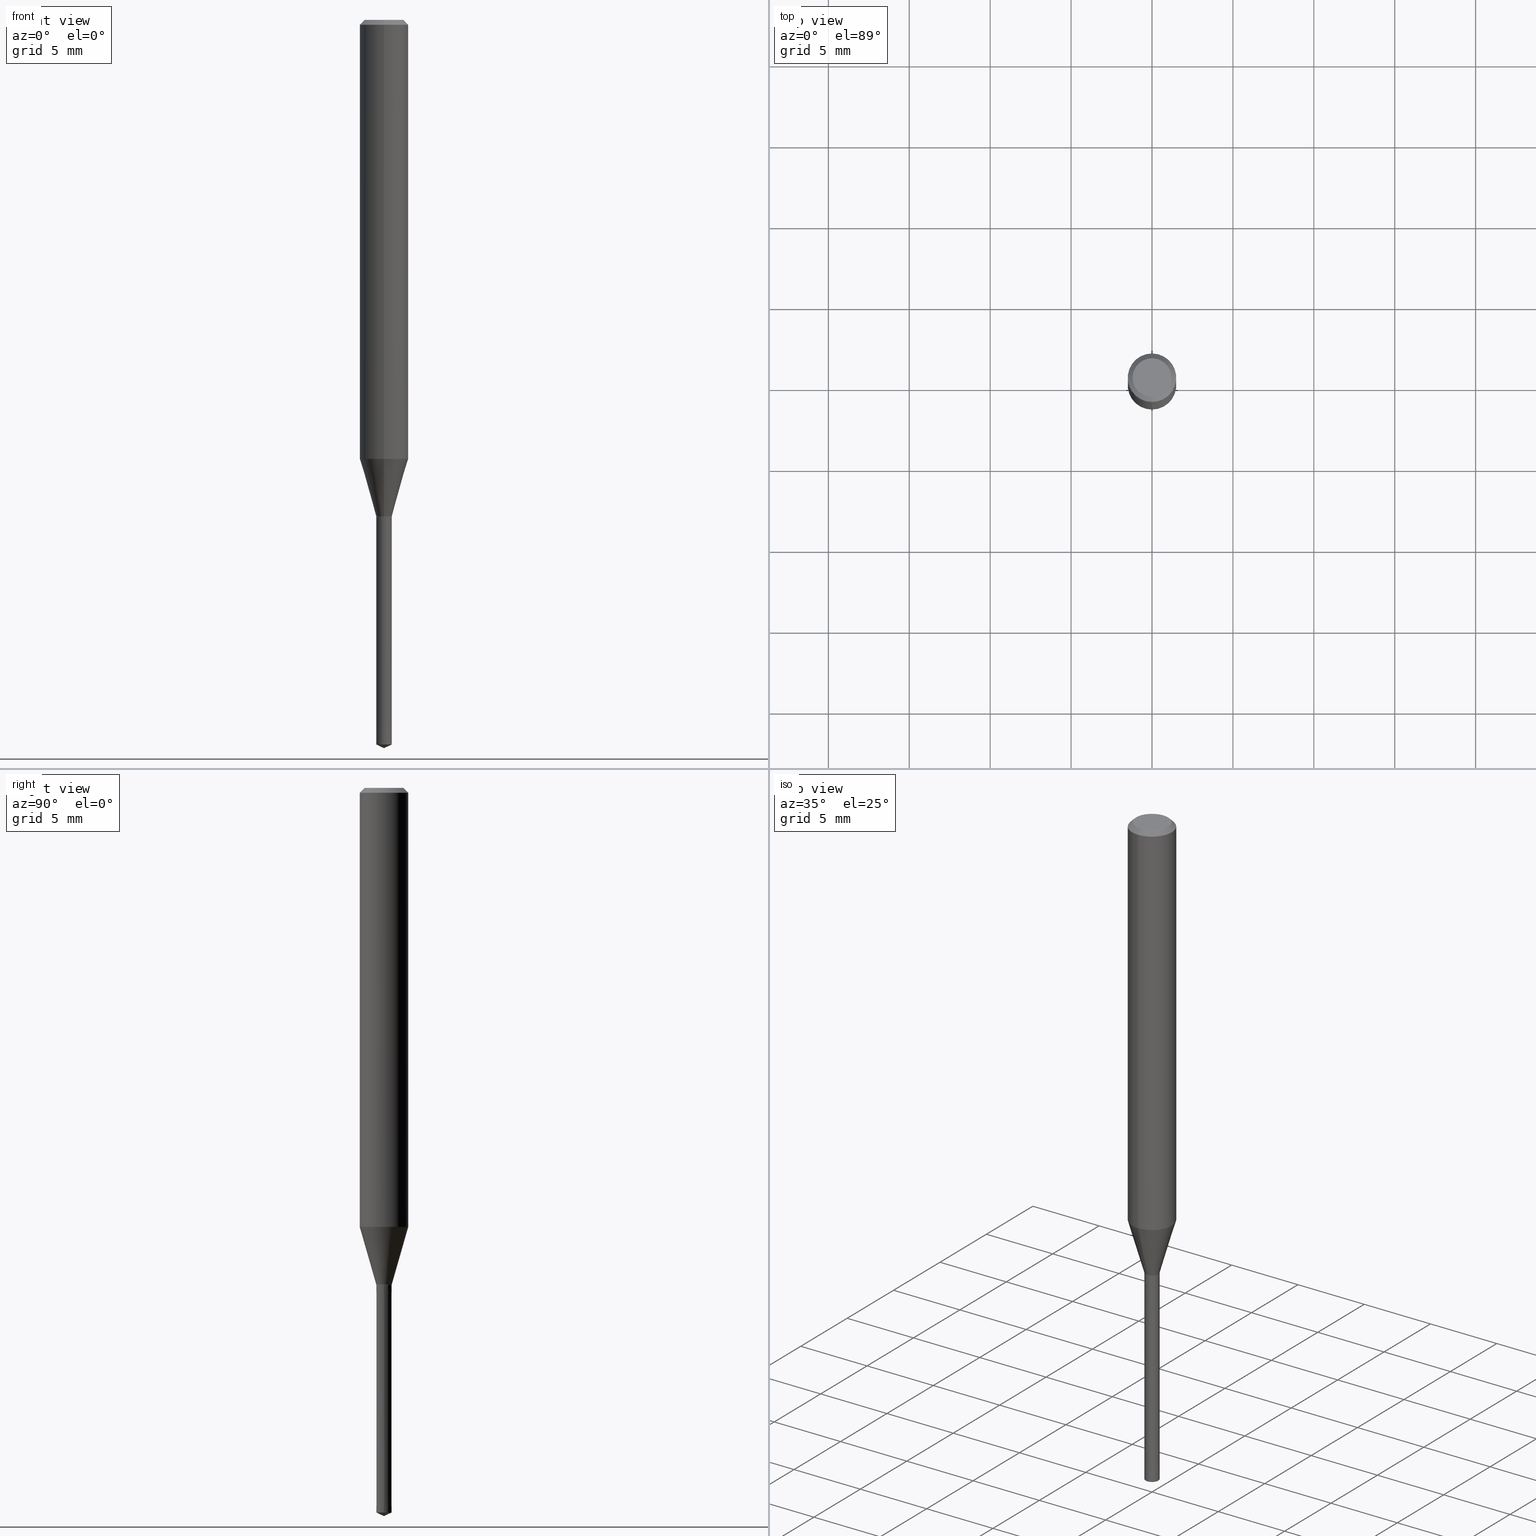
[diagram: canonical four-view strip — front | top / right | iso, engineering-drawing reading convention]
A machine part, canonical four-view strip (front | top / right | iso — engineering-drawing reading convention). The complete STEP part file that produces these views, byte-faithful:
ISO-10303-21;
HEADER;
FILE_DESCRIPTION(('no description'),'unknown implementation level');
FILE_NAME('UTDLX2095-143-Huellk.stp','  ',('CIMSOURCE GmbH'),('CADClick - KiM GmbH - www.kimweb.de'),'unknown preprocess','ACIS','unknown authorization');
FILE_SCHEMA(('automotive_design'));
ENDSEC;
DATA;
#1=MECHANICAL_DESIGN_GEOMETRIC_PRESENTATION_REPRESENTATION(' ',(#14,#15,#16,#17,#18,#19,#20,#21,#22,#23,#24,#25,#26,#27,#28,#29,#30,#31,#32,#33,#34,#35,#36,#37,#38,#39,#40,#41,#42,#43,#44,#45,#46,#47,#48,#49,#50,#51,#52,#53,#54,#55,#56,#57,#58,#59,#60,#61,#62,#63,#64,#65,#66,#67,#68,#69,#70,#71),#10);
#2=PRODUCT_DEFINITION_CONTEXT('',#72,'design');
#3=APPLICATION_PROTOCOL_DEFINITION('INTERNATIONAL STANDARD','automotive_design',1994,#72);
#4=PRODUCT_CATEGORY_RELATIONSHIP('NONE','NONE',#73,#74);
#5=SHAPE_DEFINITION_REPRESENTATION(#75,#76);
#6=PRODUCT_DEFINITION_CONTEXT('',#77,'design');
#7=APPLICATION_PROTOCOL_DEFINITION('INTERNATIONAL STANDARD','automotive_design',1994,#77);
#8=PRODUCT_CATEGORY_RELATIONSHIP('NONE','NONE',#78,#79);
#9=SHAPE_DEFINITION_REPRESENTATION(#80,#81);
#10= (GEOMETRIC_REPRESENTATION_CONTEXT(3)GLOBAL_UNCERTAINTY_ASSIGNED_CONTEXT((#84))GLOBAL_UNIT_ASSIGNED_CONTEXT((#86,#87,#88))REPRESENTATION_CONTEXT('NONE','WORKSPACE'));
#14=STYLED_ITEM('',(#90),#91);
#15=STYLED_ITEM('',(#92),#93);
#16=STYLED_ITEM('',(#94),#95);
#17=STYLED_ITEM('',(#96),#97);
#18=STYLED_ITEM('',(#98),#99);
#19=STYLED_ITEM('',(#100),#101);
#20=STYLED_ITEM('',(#102),#103);
#21=STYLED_ITEM('',(#104),#105);
#22=STYLED_ITEM('',(#106),#107);
#23=STYLED_ITEM('',(#108),#109);
#24=STYLED_ITEM('',(#110),#111);
#25=STYLED_ITEM('',(#112),#113);
#26=STYLED_ITEM('',(#114),#115);
#27=STYLED_ITEM('',(#116),#117);
#28=STYLED_ITEM('',(#118),#119);
#29=STYLED_ITEM('',(#120),#121);
#30=STYLED_ITEM('',(#122),#123);
#31=STYLED_ITEM('',(#124),#125);
#32=STYLED_ITEM('',(#126),#127);
#33=STYLED_ITEM('',(#128),#129);
#34=STYLED_ITEM('',(#130),#131);
#35=STYLED_ITEM('',(#132),#133);
#36=STYLED_ITEM('',(#134),#135);
#37=STYLED_ITEM('',(#136),#137);
#38=STYLED_ITEM('',(#138),#139);
#39=STYLED_ITEM('',(#140),#141);
#40=STYLED_ITEM('',(#142),#143);
#41=STYLED_ITEM('',(#144),#145);
#42=STYLED_ITEM('',(#146),#147);
#43=STYLED_ITEM('',(#148),#149);
#44=STYLED_ITEM('',(#150),#151);
#45=STYLED_ITEM('',(#152),#153);
#46=STYLED_ITEM('',(#154),#155);
#47=STYLED_ITEM('',(#156),#157);
#48=STYLED_ITEM('',(#158),#159);
#49=STYLED_ITEM('',(#160),#161);
#50=STYLED_ITEM('',(#162),#163);
#51=STYLED_ITEM('',(#164),#165);
#52=STYLED_ITEM('',(#166),#167);
#53=STYLED_ITEM('',(#168),#169);
#54=STYLED_ITEM('',(#170),#171);
#55=STYLED_ITEM('',(#172),#173);
#56=STYLED_ITEM('',(#174),#175);
#57=STYLED_ITEM('',(#176),#177);
#58=STYLED_ITEM('',(#178),#179);
#59=STYLED_ITEM('',(#180),#181);
#60=STYLED_ITEM('',(#182),#183);
#61=STYLED_ITEM('',(#184),#185);
#62=STYLED_ITEM('',(#186),#187);
#63=STYLED_ITEM('',(#188),#189);
#64=STYLED_ITEM('',(#190),#191);
#65=STYLED_ITEM('',(#192),#193);
#66=STYLED_ITEM('',(#194),#195);
#67=STYLED_ITEM('',(#196),#197);
#68=STYLED_ITEM('',(#198),#199);
#69=STYLED_ITEM('',(#200),#201);
#70=STYLED_ITEM('',(#202),#203);
#71=STYLED_ITEM('',(#204),#205);
#72=APPLICATION_CONTEXT(' ');
#73=PRODUCT_CATEGORY('part','NONE');
#74=PRODUCT_RELATED_PRODUCT_CATEGORY('detail',' ',(#206));
#75=PRODUCT_DEFINITION_SHAPE('NONE','NONE',#207);
#76=ADVANCED_BREP_SHAPE_REPRESENTATION('1',(#197,#208),#10);
#77=APPLICATION_CONTEXT(' ');
#78=PRODUCT_CATEGORY('part','NONE');
#79=PRODUCT_RELATED_PRODUCT_CATEGORY('detail',' ',(#209));
#80=PRODUCT_DEFINITION_SHAPE('NONE','NONE',#210);
#81=ADVANCED_BREP_SHAPE_REPRESENTATION('2',(#185,#211),#10);
#84=UNCERTAINTY_MEASURE_WITH_UNIT(LENGTH_MEASURE(1.0E-006),#86,'','');
#86= (CONVERSION_BASED_UNIT('MILLIMETRE',#214)LENGTH_UNIT()NAMED_UNIT(#217));
#87= (NAMED_UNIT(#219)PLANE_ANGLE_UNIT()SI_UNIT($,.RADIAN.));
#88= (NAMED_UNIT(#219)SOLID_ANGLE_UNIT()SI_UNIT($,.STERADIAN.));
#90=PRESENTATION_STYLE_ASSIGNMENT((#225));
#91=EDGE_CURVE('',#173,#193,#226,.T.);
#92=PRESENTATION_STYLE_ASSIGNMENT((#227));
#93=EDGE_CURVE('',#163,#153,#228,.T.);
#94=PRESENTATION_STYLE_ASSIGNMENT((#229));
#95=VERTEX_POINT('',#230);
#96=PRESENTATION_STYLE_ASSIGNMENT((#231));
#97=EDGE_CURVE('',#181,#201,#232,.T.);
#98=PRESENTATION_STYLE_ASSIGNMENT((#233));
#99=VERTEX_POINT('',#234);
#100=PRESENTATION_STYLE_ASSIGNMENT((#235));
#101=EDGE_CURVE('',#161,#103,#236,.T.);
#102=PRESENTATION_STYLE_ASSIGNMENT((#237));
#103=VERTEX_POINT('',#238);
#104=PRESENTATION_STYLE_ASSIGNMENT((#239));
#105=ADVANCED_FACE('',(#240),#241,.T.);
#106=PRESENTATION_STYLE_ASSIGNMENT((#242));
#107=EDGE_CURVE('',#161,#135,#243,.T.);
#108=PRESENTATION_STYLE_ASSIGNMENT((#244));
#109=EDGE_CURVE('',#99,#127,#245,.T.);
#110=PRESENTATION_STYLE_ASSIGNMENT((#246));
#111=ADVANCED_FACE('',(#247),#248,.T.);
#112=PRESENTATION_STYLE_ASSIGNMENT((#249));
#113=EDGE_CURVE('',#183,#103,#250,.T.);
#114=PRESENTATION_STYLE_ASSIGNMENT((#251));
#115=EDGE_CURVE('',#135,#137,#252,.T.);
#116=PRESENTATION_STYLE_ASSIGNMENT((#253));
#117=EDGE_CURVE('',#163,#129,#254,.T.);
#118=PRESENTATION_STYLE_ASSIGNMENT((#255));
#119=EDGE_CURVE('',#103,#173,#256,.T.);
#120=PRESENTATION_STYLE_ASSIGNMENT((#257));
#121=ADVANCED_FACE('',(#258),#259,.T.);
#122=PRESENTATION_STYLE_ASSIGNMENT((#260));
#123=EDGE_CURVE('',#99,#95,#261,.T.);
#124=PRESENTATION_STYLE_ASSIGNMENT((#262));
#125=ADVANCED_FACE('',(#263),#264,.T.);
#126=PRESENTATION_STYLE_ASSIGNMENT((#265));
#127=VERTEX_POINT('',#266);
#128=PRESENTATION_STYLE_ASSIGNMENT((#267));
#129=VERTEX_POINT('',#268);
#130=PRESENTATION_STYLE_ASSIGNMENT((#269));
#131=ADVANCED_FACE('',(#270),#271,.T.);
#132=PRESENTATION_STYLE_ASSIGNMENT((#272));
#133=ADVANCED_FACE('',(#273),#274,.T.);
#134=PRESENTATION_STYLE_ASSIGNMENT((#275));
#135=VERTEX_POINT('',#276);
#136=PRESENTATION_STYLE_ASSIGNMENT((#277));
#137=VERTEX_POINT('',#278);
#138=PRESENTATION_STYLE_ASSIGNMENT((#279));
#139=EDGE_CURVE('',#103,#183,#280,.T.);
#140=PRESENTATION_STYLE_ASSIGNMENT((#281));
#141=EDGE_CURVE('',#193,#183,#282,.T.);
#142=PRESENTATION_STYLE_ASSIGNMENT((#283));
#143=ADVANCED_FACE('',(#284),#285,.T.);
#144=PRESENTATION_STYLE_ASSIGNMENT((#286));
#145=ADVANCED_FACE('',(#287),#288,.T.);
#146=PRESENTATION_STYLE_ASSIGNMENT((#289));
#147=EDGE_CURVE('',#95,#99,#290,.T.);
#148=PRESENTATION_STYLE_ASSIGNMENT((#291));
#149=EDGE_CURVE('',#201,#181,#292,.T.);
#150=PRESENTATION_STYLE_ASSIGNMENT((#293));
#151=EDGE_CURVE('',#137,#153,#294,.T.);
#152=PRESENTATION_STYLE_ASSIGNMENT((#295));
#153=VERTEX_POINT('',#296);
#154=PRESENTATION_STYLE_ASSIGNMENT((#297));
#155=EDGE_CURVE('',#135,#161,#298,.T.);
#156=PRESENTATION_STYLE_ASSIGNMENT((#299));
#157=EDGE_CURVE('',#129,#163,#300,.T.);
#158=PRESENTATION_STYLE_ASSIGNMENT((#301));
#159=EDGE_CURVE('',#183,#135,#302,.T.);
#160=PRESENTATION_STYLE_ASSIGNMENT((#303));
#161=VERTEX_POINT('',#304);
#162=PRESENTATION_STYLE_ASSIGNMENT((#305));
#163=VERTEX_POINT('',#306);
#164=PRESENTATION_STYLE_ASSIGNMENT((#307));
#165=ADVANCED_FACE('',(#308),#309,.T.);
#166=PRESENTATION_STYLE_ASSIGNMENT((#310));
#167=EDGE_CURVE('',#201,#99,#311,.T.);
#168=PRESENTATION_STYLE_ASSIGNMENT((#312));
#169=EDGE_CURVE('',#153,#137,#313,.T.);
#170=PRESENTATION_STYLE_ASSIGNMENT((#314));
#171=EDGE_CURVE('',#137,#129,#315,.T.);
#172=PRESENTATION_STYLE_ASSIGNMENT((#316));
#173=VERTEX_POINT('',#317);
#174=PRESENTATION_STYLE_ASSIGNMENT((#318));
#175=ADVANCED_FACE('',(#319),#320,.T.);
#176=PRESENTATION_STYLE_ASSIGNMENT((#321));
#177=EDGE_CURVE('',#193,#173,#322,.T.);
#178=PRESENTATION_STYLE_ASSIGNMENT((#323));
#179=ADVANCED_FACE('',(#324),#325,.T.);
#180=PRESENTATION_STYLE_ASSIGNMENT((#326));
#181=VERTEX_POINT('',#327);
#182=PRESENTATION_STYLE_ASSIGNMENT((#328));
#183=VERTEX_POINT('',#329);
#184=PRESENTATION_STYLE_ASSIGNMENT((#330));
#185=MANIFOLD_SOLID_BREP('2',#331);
#186=PRESENTATION_STYLE_ASSIGNMENT((#332));
#187=EDGE_CURVE('',#153,#161,#333,.T.);
#188=PRESENTATION_STYLE_ASSIGNMENT((#334));
#189=ADVANCED_FACE('',(#335),#336,.T.);
#190=PRESENTATION_STYLE_ASSIGNMENT((#337));
#191=ADVANCED_FACE('',(#338),#339,.T.);
#192=PRESENTATION_STYLE_ASSIGNMENT((#340));
#193=VERTEX_POINT('',#341);
#194=PRESENTATION_STYLE_ASSIGNMENT((#342));
#195=ADVANCED_FACE('',(#343),#344,.T.);
#196=PRESENTATION_STYLE_ASSIGNMENT((#345));
#197=MANIFOLD_SOLID_BREP('1',#346);
#198=PRESENTATION_STYLE_ASSIGNMENT((#347));
#199=EDGE_CURVE('',#127,#95,#348,.T.);
#200=PRESENTATION_STYLE_ASSIGNMENT((#349));
#201=VERTEX_POINT('',#350);
#202=PRESENTATION_STYLE_ASSIGNMENT((#351));
#203=ADVANCED_FACE('',(#352),#353,.T.);
#204=PRESENTATION_STYLE_ASSIGNMENT((#354));
#205=EDGE_CURVE('',#95,#181,#355,.T.);
#206=PRODUCT('1','1','PART-1-DESC',(#356));
#207=PRODUCT_DEFINITION('NONE','NONE',#357,#2);
#208=AXIS2_PLACEMENT_3D('',#358,#359,#360);
#209=PRODUCT('2','2','PART-2-DESC',(#361));
#210=PRODUCT_DEFINITION('NONE','NONE',#362,#6);
#211=AXIS2_PLACEMENT_3D('',#363,#364,#365);
#214=LENGTH_MEASURE_WITH_UNIT(LENGTH_MEASURE(1.0),#366);
#217=DIMENSIONAL_EXPONENTS(1.0,0.0,0.0,0.0,0.0,0.0,0.0);
#219=DIMENSIONAL_EXPONENTS(0.0,0.0,0.0,0.0,0.0,0.0,0.0);
#225=CURVE_STYLE('',#367,POSITIVE_LENGTH_MEASURE(1.0E-006),#368);
#226=CIRCLE('',#369,1.2);
#227=CURVE_STYLE('',#370,POSITIVE_LENGTH_MEASURE(1.0E-006),#371);
#228=LINE('',#372,#373);
#229=POINT_STYLE(' ',#374,POSITIVE_LENGTH_MEASURE(1.0E-006),#375);
#230=CARTESIAN_POINT('',(0.475,5.81688018065629E-017,-44.77850386));
#231=CURVE_STYLE('',#376,POSITIVE_LENGTH_MEASURE(1.0E-006),#377);
#232=CIRCLE('',#378,0.476);
#233=POINT_STYLE(' ',#379,POSITIVE_LENGTH_MEASURE(1.0E-006),#380);
#234=CARTESIAN_POINT('',(-0.475,0.0,-44.77850386));
#235=CURVE_STYLE('',#381,POSITIVE_LENGTH_MEASURE(1.0E-006),#382);
#236=LINE('',#383,#384);
#237=POINT_STYLE(' ',#385,POSITIVE_LENGTH_MEASURE(1.0E-006),#386);
#238=CARTESIAN_POINT('',(1.83690953073357E-016,-1.5,-0.300000000000001));
#239=SURFACE_STYLE_USAGE(.BOTH.,#387);
#240=FACE_OUTER_BOUND('',#388,.T.);
#241=CYLINDRICAL_SURFACE('',#389,1.5);
#242=CURVE_STYLE('',#390,POSITIVE_LENGTH_MEASURE(1.0E-006),#391);
#243=CIRCLE('',#392,1.5);
#244=CURVE_STYLE('',#393,POSITIVE_LENGTH_MEASURE(1.0E-006),#394);
#245=LINE('',#395,#396);
#246=SURFACE_STYLE_USAGE(.BOTH.,#397);
#247=FACE_OUTER_BOUND('',#398,.T.);
#248=CONICAL_SURFACE('',#399,1.35,0.785398163397447);
#249=CURVE_STYLE('',#400,POSITIVE_LENGTH_MEASURE(1.0E-006),#401);
#250=CIRCLE('',#402,1.5);
#251=CURVE_STYLE('',#403,POSITIVE_LENGTH_MEASURE(1.0E-006),#404);
#252=LINE('',#405,#406);
#253=CURVE_STYLE('',#407,POSITIVE_LENGTH_MEASURE(1.0E-006),#408);
#254=CIRCLE('',#409,0.4755);
#255=CURVE_STYLE('',#410,POSITIVE_LENGTH_MEASURE(1.0E-006),#411);
#256=LINE('',#412,#413);
#257=SURFACE_STYLE_USAGE(.BOTH.,#414);
#258=FACE_OUTER_BOUND('',#415,.T.);
#259=CONICAL_SURFACE('',#416,0.2375,1.13446400968697);
#260=CURVE_STYLE('',#417,POSITIVE_LENGTH_MEASURE(1.0E-006),#418);
#261=CIRCLE('',#419,0.475);
#262=SURFACE_STYLE_USAGE(.BOTH.,#420);
#263=FACE_OUTER_BOUND('',#421,.T.);
#264=PLANE('',#422);
#265=POINT_STYLE(' ',#423,POSITIVE_LENGTH_MEASURE(1.0E-006),#424);
#266=CARTESIAN_POINT('',(0.0,0.0,-45.0));
#267=POINT_STYLE(' ',#425,POSITIVE_LENGTH_MEASURE(1.0E-006),#426);
#268=CARTESIAN_POINT('',(0.0,0.4755,-30.7));
#269=SURFACE_STYLE_USAGE(.BOTH.,#427);
#270=FACE_OUTER_BOUND('',#428,.T.);
#271=CONICAL_SURFACE('',#429,0.2375,1.13446400968697);
#272=SURFACE_STYLE_USAGE(.BOTH.,#430);
#273=FACE_OUTER_BOUND('',#431,.T.);
#274=CONICAL_SURFACE('',#432,0.47525,0.523598775598408);
#275=POINT_STYLE(' ',#433,POSITIVE_LENGTH_MEASURE(1.0E-006),#434);
#276=CARTESIAN_POINT('',(0.0,1.5,-27.125));
#277=POINT_STYLE(' ',#435,POSITIVE_LENGTH_MEASURE(1.0E-006),#436);
#278=CARTESIAN_POINT('',(0.0,0.475,-30.6991339745962));
#279=CURVE_STYLE('',#437,POSITIVE_LENGTH_MEASURE(1.0E-006),#438);
#280=CIRCLE('',#439,1.5);
#281=CURVE_STYLE('',#440,POSITIVE_LENGTH_MEASURE(1.0E-006),#441);
#282=LINE('',#442,#443);
#283=SURFACE_STYLE_USAGE(.BOTH.,#444);
#284=FACE_OUTER_BOUND('',#445,.T.);
#285=CONICAL_SURFACE('',#446,0.4755,7.10302748262509E-005);
#286=SURFACE_STYLE_USAGE(.BOTH.,#447);
#287=FACE_OUTER_BOUND('',#448,.T.);
#288=CONICAL_SURFACE('',#449,1.35,0.785398163397447);
#289=CURVE_STYLE('',#450,POSITIVE_LENGTH_MEASURE(1.0E-006),#451);
#290=CIRCLE('',#452,0.475);
#291=CURVE_STYLE('',#453,POSITIVE_LENGTH_MEASURE(1.0E-006),#454);
#292=CIRCLE('',#455,0.476);
#293=CURVE_STYLE('',#456,POSITIVE_LENGTH_MEASURE(1.0E-006),#457);
#294=CIRCLE('',#458,0.475);
#295=POINT_STYLE(' ',#459,POSITIVE_LENGTH_MEASURE(1.0E-006),#460);
#296=CARTESIAN_POINT('',(5.81688018065629E-017,-0.475,-30.6991339745962));
#297=CURVE_STYLE('',#461,POSITIVE_LENGTH_MEASURE(1.0E-006),#462);
#298=CIRCLE('',#463,1.5);
#299=CURVE_STYLE('',#464,POSITIVE_LENGTH_MEASURE(1.0E-006),#465);
#300=CIRCLE('',#466,0.4755);
#301=CURVE_STYLE('',#467,POSITIVE_LENGTH_MEASURE(1.0E-006),#468);
#302=LINE('',#469,#470);
#303=POINT_STYLE(' ',#471,POSITIVE_LENGTH_MEASURE(1.0E-006),#472);
#304=CARTESIAN_POINT('',(1.83690953073357E-016,-1.5,-27.125));
#305=POINT_STYLE(' ',#473,POSITIVE_LENGTH_MEASURE(1.0E-006),#474);
#306=CARTESIAN_POINT('',(5.8230032124254E-017,-0.4755,-30.7));
#307=SURFACE_STYLE_USAGE(.BOTH.,#475);
#308=FACE_OUTER_BOUND('',#476,.T.);
#309=PLANE('',#477);
#310=CURVE_STYLE('',#478,POSITIVE_LENGTH_MEASURE(1.0E-006),#479);
#311=LINE('',#480,#481);
#312=CURVE_STYLE('',#482,POSITIVE_LENGTH_MEASURE(1.0E-006),#483);
#313=CIRCLE('',#484,0.475);
#314=CURVE_STYLE('',#485,POSITIVE_LENGTH_MEASURE(1.0E-006),#486);
#315=LINE('',#487,#488);
#316=POINT_STYLE(' ',#489,POSITIVE_LENGTH_MEASURE(1.0E-006),#490);
#317=CARTESIAN_POINT('',(1.46952762458685E-016,-1.2,0.0));
#318=SURFACE_STYLE_USAGE(.BOTH.,#491);
#319=FACE_OUTER_BOUND('',#492,.T.);
#320=CYLINDRICAL_SURFACE('',#493,1.5);
#321=CURVE_STYLE('',#494,POSITIVE_LENGTH_MEASURE(1.0E-006),#495);
#322=CIRCLE('',#496,1.2);
#323=SURFACE_STYLE_USAGE(.BOTH.,#497);
#324=FACE_OUTER_BOUND('',#498,.T.);
#325=PLANE('',#499);
#326=POINT_STYLE(' ',#500,POSITIVE_LENGTH_MEASURE(1.0E-006),#501);
#327=CARTESIAN_POINT('',(0.476,5.82912624419452E-017,-30.7));
#328=POINT_STYLE(' ',#502,POSITIVE_LENGTH_MEASURE(1.0E-006),#503);
#329=CARTESIAN_POINT('',(0.0,1.5,-0.300000000000001));
#330=SURFACE_STYLE_USAGE(.BOTH.,#504);
#331=CLOSED_SHELL('',(#131,#143,#165,#195,#121));
#332=CURVE_STYLE('',#505,POSITIVE_LENGTH_MEASURE(1.0E-006),#506);
#333=LINE('',#507,#508);
#334=SURFACE_STYLE_USAGE(.BOTH.,#509);
#335=FACE_OUTER_BOUND('',#510,.T.);
#336=CONICAL_SURFACE('',#511,0.9875,0.27928721316379);
#337=SURFACE_STYLE_USAGE(.BOTH.,#512);
#338=FACE_OUTER_BOUND('',#513,.T.);
#339=CONICAL_SURFACE('',#514,0.47525,0.523598775598408);
#340=POINT_STYLE(' ',#515,POSITIVE_LENGTH_MEASURE(1.0E-006),#516);
#341=CARTESIAN_POINT('',(0.0,1.2,0.0));
#342=SURFACE_STYLE_USAGE(.BOTH.,#517);
#343=FACE_OUTER_BOUND('',#518,.T.);
#344=CONICAL_SURFACE('',#519,0.4755,7.10302748262509E-005);
#345=SURFACE_STYLE_USAGE(.BOTH.,#520);
#346=CLOSED_SHELL('',(#191,#189,#105,#145,#179,#111,#175,#203,#133,#125));
#347=CURVE_STYLE('',#521,POSITIVE_LENGTH_MEASURE(1.0E-006),#522);
#348=LINE('',#523,#524);
#349=POINT_STYLE(' ',#525,POSITIVE_LENGTH_MEASURE(1.0E-006),#526);
#350=CARTESIAN_POINT('',(-0.476,0.0,-30.7));
#351=SURFACE_STYLE_USAGE(.BOTH.,#527);
#352=FACE_OUTER_BOUND('',#528,.T.);
#353=CONICAL_SURFACE('',#529,0.9875,0.27928721316379);
#354=CURVE_STYLE('',#530,POSITIVE_LENGTH_MEASURE(1.0E-006),#531);
#355=LINE('',#532,#533);
#356=PRODUCT_CONTEXT('',#72,'mechanical');
#357=PRODUCT_DEFINITION_FORMATION_WITH_SPECIFIED_SOURCE(' ','NONE',#206,.NOT_KNOWN.);
#358=CARTESIAN_POINT('',(0.0,0.0,0.0));
#359=DIRECTION('',(0.0,0.0,1.0));
#360=DIRECTION('',(1.0,0.0,0.0));
#361=PRODUCT_CONTEXT('',#77,'mechanical');
#362=PRODUCT_DEFINITION_FORMATION_WITH_SPECIFIED_SOURCE(' ','NONE',#209,.NOT_KNOWN.);
#363=CARTESIAN_POINT('',(0.0,0.0,0.0));
#364=DIRECTION('',(0.0,0.0,1.0));
#365=DIRECTION('',(1.0,0.0,0.0));
#366= (NAMED_UNIT(#217)LENGTH_UNIT()SI_UNIT(.MILLI.,.METRE.));
#367=DRAUGHTING_PRE_DEFINED_CURVE_FONT('continuous');
#368=COLOUR_RGB('',0.498039215803146,0.498039215803146,0.498039215803146);
#369=AXIS2_PLACEMENT_3D('',#535,#536,#537);
#370=DRAUGHTING_PRE_DEFINED_CURVE_FONT('continuous');
#371=COLOUR_RGB('',0.498039215803146,0.498039215803146,0.498039215803146);
#372=CARTESIAN_POINT('',(5.81994169654085E-017,-0.47525,-30.6995669872981));
#373=VECTOR('',#538,1.0);
#374=PRE_DEFINED_MARKER('');
#375=COLOUR_RGB('',0.800000011920929,0.800000011920929,0.800000011920929);
#376=DRAUGHTING_PRE_DEFINED_CURVE_FONT('continuous');
#377=COLOUR_RGB('',0.800000011920929,0.800000011920929,0.800000011920929);
#378=AXIS2_PLACEMENT_3D('',#539,#540,#541);
#379=PRE_DEFINED_MARKER('');
#380=COLOUR_RGB('',0.800000011920929,0.800000011920929,0.800000011920929);
#381=DRAUGHTING_PRE_DEFINED_CURVE_FONT('continuous');
#382=COLOUR_RGB('',0.498039215803146,0.498039215803146,0.498039215803146);
#383=CARTESIAN_POINT('',(1.83690953073357E-016,-1.5,-13.7125));
#384=VECTOR('',#542,1.0);
#385=PRE_DEFINED_MARKER('');
#386=COLOUR_RGB('',0.498039215803146,0.498039215803146,0.498039215803146);
#387=SURFACE_SIDE_STYLE('',(#543));
#388=EDGE_LOOP('',(#544,#545,#546,#547));
#389=AXIS2_PLACEMENT_3D('',#548,#549,#550);
#390=DRAUGHTING_PRE_DEFINED_CURVE_FONT('continuous');
#391=COLOUR_RGB('',0.498039215803146,0.498039215803146,0.498039215803146);
#392=AXIS2_PLACEMENT_3D('',#551,#552,#553);
#393=DRAUGHTING_PRE_DEFINED_CURVE_FONT('continuous');
#394=COLOUR_RGB('',0.800000011920929,0.800000011920929,0.800000011920929);
#395=CARTESIAN_POINT('',(-0.2375,-2.90844009032815E-017,-44.88925193));
#396=VECTOR('',#554,1.0);
#397=SURFACE_SIDE_STYLE('',(#555));
#398=EDGE_LOOP('',(#556,#557,#558,#559));
#399=AXIS2_PLACEMENT_3D('',#560,#561,#562);
#400=DRAUGHTING_PRE_DEFINED_CURVE_FONT('continuous');
#401=COLOUR_RGB('',0.498039215803146,0.498039215803146,0.498039215803146);
#402=AXIS2_PLACEMENT_3D('',#563,#564,#565);
#403=DRAUGHTING_PRE_DEFINED_CURVE_FONT('continuous');
#404=COLOUR_RGB('',0.498039215803146,0.498039215803146,0.498039215803146);
#405=CARTESIAN_POINT('',(-1.2092987743996E-016,0.9875,-28.9120669872981));
#406=VECTOR('',#566,1.0);
#407=DRAUGHTING_PRE_DEFINED_CURVE_FONT('continuous');
#408=COLOUR_RGB('',0.498039215803146,0.498039215803146,0.498039215803146);
#409=AXIS2_PLACEMENT_3D('',#567,#568,#569);
#410=DRAUGHTING_PRE_DEFINED_CURVE_FONT('continuous');
#411=COLOUR_RGB('',0.498039215803146,0.498039215803146,0.498039215803146);
#412=CARTESIAN_POINT('',(1.65321857766021E-016,-1.35,-0.149999999999999));
#413=VECTOR('',#570,1.0);
#414=SURFACE_SIDE_STYLE('',(#571));
#415=EDGE_LOOP('',(#572,#573,#574));
#416=AXIS2_PLACEMENT_3D('',#575,#576,#577);
#417=DRAUGHTING_PRE_DEFINED_CURVE_FONT('continuous');
#418=COLOUR_RGB('',0.800000011920929,0.800000011920929,0.800000011920929);
#419=AXIS2_PLACEMENT_3D('',#578,#579,#580);
#420=SURFACE_SIDE_STYLE('',(#581));
#421=EDGE_LOOP('',(#582,#583));
#422=AXIS2_PLACEMENT_3D('',#584,#585,#586);
#423=PRE_DEFINED_MARKER('');
#424=COLOUR_RGB('',0.800000011920929,0.800000011920929,0.800000011920929);
#425=PRE_DEFINED_MARKER('');
#426=COLOUR_RGB('',0.498039215803146,0.498039215803146,0.498039215803146);
#427=SURFACE_SIDE_STYLE('',(#587));
#428=EDGE_LOOP('',(#588,#589,#590));
#429=AXIS2_PLACEMENT_3D('',#591,#592,#593);
#430=SURFACE_SIDE_STYLE('',(#594));
#431=EDGE_LOOP('',(#595,#596,#597,#598));
#432=AXIS2_PLACEMENT_3D('',#599,#600,#601);
#433=PRE_DEFINED_MARKER('');
#434=COLOUR_RGB('',0.498039215803146,0.498039215803146,0.498039215803146);
#435=PRE_DEFINED_MARKER('');
#436=COLOUR_RGB('',0.498039215803146,0.498039215803146,0.498039215803146);
#437=DRAUGHTING_PRE_DEFINED_CURVE_FONT('continuous');
#438=COLOUR_RGB('',0.498039215803146,0.498039215803146,0.498039215803146);
#439=AXIS2_PLACEMENT_3D('',#602,#603,#604);
#440=DRAUGHTING_PRE_DEFINED_CURVE_FONT('continuous');
#441=COLOUR_RGB('',0.498039215803146,0.498039215803146,0.498039215803146);
#442=CARTESIAN_POINT('',(-1.65321857766021E-016,1.35,-0.149999999999999));
#443=VECTOR('',#605,1.0);
#444=SURFACE_SIDE_STYLE('',(#606));
#445=EDGE_LOOP('',(#607,#608,#609,#610));
#446=AXIS2_PLACEMENT_3D('',#611,#612,#613);
#447=SURFACE_SIDE_STYLE('',(#614));
#448=EDGE_LOOP('',(#615,#616,#617,#618));
#449=AXIS2_PLACEMENT_3D('',#619,#620,#621);
#450=DRAUGHTING_PRE_DEFINED_CURVE_FONT('continuous');
#451=COLOUR_RGB('',0.800000011920929,0.800000011920929,0.800000011920929);
#452=AXIS2_PLACEMENT_3D('',#622,#623,#624);
#453=DRAUGHTING_PRE_DEFINED_CURVE_FONT('continuous');
#454=COLOUR_RGB('',0.800000011920929,0.800000011920929,0.800000011920929);
#455=AXIS2_PLACEMENT_3D('',#625,#626,#627);
#456=DRAUGHTING_PRE_DEFINED_CURVE_FONT('continuous');
#457=COLOUR_RGB('',0.498039215803146,0.498039215803146,0.498039215803146);
#458=AXIS2_PLACEMENT_3D('',#628,#629,#630);
#459=PRE_DEFINED_MARKER('');
#460=COLOUR_RGB('',0.498039215803146,0.498039215803146,0.498039215803146);
#461=DRAUGHTING_PRE_DEFINED_CURVE_FONT('continuous');
#462=COLOUR_RGB('',0.498039215803146,0.498039215803146,0.498039215803146);
#463=AXIS2_PLACEMENT_3D('',#631,#632,#633);
#464=DRAUGHTING_PRE_DEFINED_CURVE_FONT('continuous');
#465=COLOUR_RGB('',0.498039215803146,0.498039215803146,0.498039215803146);
#466=AXIS2_PLACEMENT_3D('',#634,#635,#636);
#467=DRAUGHTING_PRE_DEFINED_CURVE_FONT('continuous');
#468=COLOUR_RGB('',0.498039215803146,0.498039215803146,0.498039215803146);
#469=CARTESIAN_POINT('',(-1.83690953073357E-016,1.5,-13.7125));
#470=VECTOR('',#637,1.0);
#471=PRE_DEFINED_MARKER('');
#472=COLOUR_RGB('',0.498039215803146,0.498039215803146,0.498039215803146);
#473=PRE_DEFINED_MARKER('');
#474=COLOUR_RGB('',0.498039215803146,0.498039215803146,0.498039215803146);
#475=SURFACE_SIDE_STYLE('',(#638));
#476=EDGE_LOOP('',(#639,#640));
#477=AXIS2_PLACEMENT_3D('',#641,#642,#643);
#478=DRAUGHTING_PRE_DEFINED_CURVE_FONT('continuous');
#479=COLOUR_RGB('',0.800000011920929,0.800000011920929,0.800000011920929);
#480=CARTESIAN_POINT('',(-0.4755,-5.8230032124254E-017,-37.73925193));
#481=VECTOR('',#644,1.0);
#482=DRAUGHTING_PRE_DEFINED_CURVE_FONT('continuous');
#483=COLOUR_RGB('',0.498039215803146,0.498039215803146,0.498039215803146);
#484=AXIS2_PLACEMENT_3D('',#645,#646,#647);
#485=DRAUGHTING_PRE_DEFINED_CURVE_FONT('continuous');
#486=COLOUR_RGB('',0.498039215803146,0.498039215803146,0.498039215803146);
#487=CARTESIAN_POINT('',(-5.81994169654085E-017,0.47525,-30.6995669872981));
#488=VECTOR('',#648,1.0);
#489=PRE_DEFINED_MARKER('');
#490=COLOUR_RGB('',0.498039215803146,0.498039215803146,0.498039215803146);
#491=SURFACE_SIDE_STYLE('',(#649));
#492=EDGE_LOOP('',(#650,#651,#652,#653));
#493=AXIS2_PLACEMENT_3D('',#654,#655,#656);
#494=DRAUGHTING_PRE_DEFINED_CURVE_FONT('continuous');
#495=COLOUR_RGB('',0.498039215803146,0.498039215803146,0.498039215803146);
#496=AXIS2_PLACEMENT_3D('',#657,#658,#659);
#497=SURFACE_SIDE_STYLE('',(#660));
#498=EDGE_LOOP('',(#661,#662));
#499=AXIS2_PLACEMENT_3D('',#663,#664,#665);
#500=PRE_DEFINED_MARKER('');
#501=COLOUR_RGB('',0.800000011920929,0.800000011920929,0.800000011920929);
#502=PRE_DEFINED_MARKER('');
#503=COLOUR_RGB('',0.498039215803146,0.498039215803146,0.498039215803146);
#504=SURFACE_SIDE_STYLE('',(#666));
#505=DRAUGHTING_PRE_DEFINED_CURVE_FONT('continuous');
#506=COLOUR_RGB('',0.498039215803146,0.498039215803146,0.498039215803146);
#507=CARTESIAN_POINT('',(1.2092987743996E-016,-0.9875,-28.9120669872981));
#508=VECTOR('',#667,1.0);
#509=SURFACE_SIDE_STYLE('',(#668));
#510=EDGE_LOOP('',(#669,#670,#671,#672));
#511=AXIS2_PLACEMENT_3D('',#673,#674,#675);
#512=SURFACE_SIDE_STYLE('',(#676));
#513=EDGE_LOOP('',(#677,#678,#679,#680));
#514=AXIS2_PLACEMENT_3D('',#681,#682,#683);
#515=PRE_DEFINED_MARKER('');
#516=COLOUR_RGB('',0.498039215803146,0.498039215803146,0.498039215803146);
#517=SURFACE_SIDE_STYLE('',(#684));
#518=EDGE_LOOP('',(#685,#686,#687,#688));
#519=AXIS2_PLACEMENT_3D('',#689,#690,#691);
#520=SURFACE_SIDE_STYLE('',(#692));
#521=DRAUGHTING_PRE_DEFINED_CURVE_FONT('continuous');
#522=COLOUR_RGB('',0.800000011920929,0.800000011920929,0.800000011920929);
#523=CARTESIAN_POINT('',(0.2375,2.90844009032815E-017,-44.88925193));
#524=VECTOR('',#693,1.0);
#525=PRE_DEFINED_MARKER('');
#526=COLOUR_RGB('',0.800000011920929,0.800000011920929,0.800000011920929);
#527=SURFACE_SIDE_STYLE('',(#694));
#528=EDGE_LOOP('',(#695,#696,#697,#698));
#529=AXIS2_PLACEMENT_3D('',#699,#700,#701);
#530=DRAUGHTING_PRE_DEFINED_CURVE_FONT('continuous');
#531=COLOUR_RGB('',0.800000011920929,0.800000011920929,0.800000011920929);
#532=CARTESIAN_POINT('',(0.4755,5.8230032124254E-017,-37.73925193));
#533=VECTOR('',#702,1.0);
#535=CARTESIAN_POINT('',(0.0,0.0,0.0));
#536=DIRECTION('',(0.0,0.0,-1.0));
#537=DIRECTION('',(0.0,1.0,0.0));
#538=DIRECTION('',(-6.12303176911304E-017,0.500000000000095,0.866025403784384));
#539=CARTESIAN_POINT('',(0.0,0.0,-30.7));
#540=DIRECTION('',(0.0,0.0,-1.0));
#541=DIRECTION('',(-1.0,0.0,0.0));
#542=DIRECTION('',(-0.0,-0.0,1.0));
#543=SURFACE_STYLE_FILL_AREA(#703);
#544=ORIENTED_EDGE('',*,*,#159,.F.);
#545=ORIENTED_EDGE('',*,*,#113,.T.);
#546=ORIENTED_EDGE('',*,*,#101,.F.);
#547=ORIENTED_EDGE('',*,*,#155,.F.);
#548=CARTESIAN_POINT('',(0.0,0.0,-13.7125));
#549=DIRECTION('',(-0.0,-0.0,1.0));
#550=DIRECTION('',(0.0,1.0,0.0));
#551=CARTESIAN_POINT('',(0.0,0.0,-27.125));
#552=DIRECTION('',(0.0,0.0,-1.0));
#553=DIRECTION('',(0.0,1.0,0.0));
#554=DIRECTION('',(0.906307785299965,1.10987027239702E-016,-0.422618265465032));
#555=SURFACE_STYLE_FILL_AREA(#704);
#556=ORIENTED_EDGE('',*,*,#141,.T.);
#557=ORIENTED_EDGE('',*,*,#139,.F.);
#558=ORIENTED_EDGE('',*,*,#119,.T.);
#559=ORIENTED_EDGE('',*,*,#91,.T.);
#560=CARTESIAN_POINT('',(0.0,0.0,-0.149999999999999));
#561=DIRECTION('',(0.0,-0.0,-1.0));
#562=DIRECTION('',(0.0,1.0,0.0));
#563=CARTESIAN_POINT('',(0.0,0.0,-0.300000000000001));
#564=DIRECTION('',(0.0,0.0,-1.0));
#565=DIRECTION('',(0.0,1.0,0.0));
#566=DIRECTION('',(3.37587908014451E-017,-0.275670550753501,-0.961252176823159));
#567=CARTESIAN_POINT('',(0.0,0.0,-30.7));
#568=DIRECTION('',(0.0,0.0,-1.0));
#569=DIRECTION('',(0.0,1.0,0.0));
#570=DIRECTION('',(-8.65927457071934E-017,0.707106781186546,0.707106781186549));
#571=SURFACE_STYLE_FILL_AREA(#705);
#572=ORIENTED_EDGE('',*,*,#199,.T.);
#573=ORIENTED_EDGE('',*,*,#147,.T.);
#574=ORIENTED_EDGE('',*,*,#109,.T.);
#575=CARTESIAN_POINT('',(0.0,0.0,-44.88925193));
#576=DIRECTION('',(-0.0,-0.0,1.0));
#577=DIRECTION('',(-1.0,0.0,0.0));
#578=CARTESIAN_POINT('',(0.0,0.0,-44.77850386));
#579=DIRECTION('',(0.0,0.0,-1.0));
#580=DIRECTION('',(-1.0,0.0,0.0));
#581=SURFACE_STYLE_FILL_AREA(#706);
#582=ORIENTED_EDGE('',*,*,#157,.T.);
#583=ORIENTED_EDGE('',*,*,#117,.T.);
#584=CARTESIAN_POINT('',(0.0,0.23775,-30.7));
#585=DIRECTION('',(0.0,0.0,-1.0));
#586=DIRECTION('',(0.0,1.0,0.0));
#587=SURFACE_STYLE_FILL_AREA(#707);
#588=ORIENTED_EDGE('',*,*,#199,.F.);
#589=ORIENTED_EDGE('',*,*,#109,.F.);
#590=ORIENTED_EDGE('',*,*,#123,.T.);
#591=CARTESIAN_POINT('',(0.0,0.0,-44.88925193));
#592=DIRECTION('',(-0.0,-0.0,1.0));
#593=DIRECTION('',(-1.0,0.0,0.0));
#594=SURFACE_STYLE_FILL_AREA(#708);
#595=ORIENTED_EDGE('',*,*,#171,.T.);
#596=ORIENTED_EDGE('',*,*,#117,.F.);
#597=ORIENTED_EDGE('',*,*,#93,.T.);
#598=ORIENTED_EDGE('',*,*,#169,.T.);
#599=CARTESIAN_POINT('',(0.0,0.0,-30.6995669872981));
#600=DIRECTION('',(0.0,-0.0,-1.0));
#601=DIRECTION('',(0.0,1.0,0.0));
#602=CARTESIAN_POINT('',(0.0,0.0,-0.300000000000001));
#603=DIRECTION('',(0.0,0.0,-1.0));
#604=DIRECTION('',(0.0,1.0,0.0));
#605=DIRECTION('',(-8.65927457071934E-017,0.707106781186546,-0.707106781186549));
#606=SURFACE_STYLE_FILL_AREA(#709);
#607=ORIENTED_EDGE('',*,*,#167,.F.);
#608=ORIENTED_EDGE('',*,*,#149,.T.);
#609=ORIENTED_EDGE('',*,*,#205,.F.);
#610=ORIENTED_EDGE('',*,*,#123,.F.);
#611=CARTESIAN_POINT('',(0.0,0.0,-37.73925193));
#612=DIRECTION('',(-0.0,-0.0,1.0));
#613=DIRECTION('',(-1.0,0.0,0.0));
#614=SURFACE_STYLE_FILL_AREA(#710);
#615=ORIENTED_EDGE('',*,*,#141,.F.);
#616=ORIENTED_EDGE('',*,*,#177,.T.);
#617=ORIENTED_EDGE('',*,*,#119,.F.);
#618=ORIENTED_EDGE('',*,*,#113,.F.);
#619=CARTESIAN_POINT('',(0.0,0.0,-0.149999999999999));
#620=DIRECTION('',(0.0,-0.0,-1.0));
#621=DIRECTION('',(0.0,1.0,0.0));
#622=CARTESIAN_POINT('',(0.0,0.0,-44.77850386));
#623=DIRECTION('',(0.0,0.0,-1.0));
#624=DIRECTION('',(-1.0,0.0,0.0));
#625=CARTESIAN_POINT('',(0.0,0.0,-30.7));
#626=DIRECTION('',(0.0,0.0,-1.0));
#627=DIRECTION('',(-1.0,0.0,0.0));
#628=CARTESIAN_POINT('',(0.0,0.0,-30.6991339745962));
#629=DIRECTION('',(0.0,0.0,-1.0));
#630=DIRECTION('',(0.0,1.0,0.0));
#631=CARTESIAN_POINT('',(0.0,0.0,-27.125));
#632=DIRECTION('',(0.0,0.0,-1.0));
#633=DIRECTION('',(0.0,1.0,0.0));
#634=CARTESIAN_POINT('',(0.0,0.0,-30.7));
#635=DIRECTION('',(0.0,0.0,-1.0));
#636=DIRECTION('',(0.0,1.0,0.0));
#637=DIRECTION('',(0.0,0.0,-1.0));
#638=SURFACE_STYLE_FILL_AREA(#711);
#639=ORIENTED_EDGE('',*,*,#149,.F.);
#640=ORIENTED_EDGE('',*,*,#97,.F.);
#641=CARTESIAN_POINT('',(-0.238,0.0,-30.7));
#642=DIRECTION('',(0.0,0.0,1.0));
#643=DIRECTION('',(1.0,0.0,0.0));
#644=DIRECTION('',(7.10302747665227E-005,8.6984125792833E-021,-0.99999999747735));
#645=CARTESIAN_POINT('',(0.0,0.0,-30.6991339745962));
#646=DIRECTION('',(0.0,0.0,-1.0));
#647=DIRECTION('',(0.0,1.0,0.0));
#648=DIRECTION('',(-6.12303176911305E-017,0.500000000000095,-0.866025403784384));
#649=SURFACE_STYLE_FILL_AREA(#712);
#650=ORIENTED_EDGE('',*,*,#159,.T.);
#651=ORIENTED_EDGE('',*,*,#107,.F.);
#652=ORIENTED_EDGE('',*,*,#101,.T.);
#653=ORIENTED_EDGE('',*,*,#139,.T.);
#654=CARTESIAN_POINT('',(0.0,0.0,-13.7125));
#655=DIRECTION('',(-0.0,-0.0,1.0));
#656=DIRECTION('',(0.0,1.0,0.0));
#657=CARTESIAN_POINT('',(0.0,0.0,0.0));
#658=DIRECTION('',(0.0,0.0,-1.0));
#659=DIRECTION('',(0.0,1.0,0.0));
#660=SURFACE_STYLE_FILL_AREA(#713);
#661=ORIENTED_EDGE('',*,*,#177,.F.);
#662=ORIENTED_EDGE('',*,*,#91,.F.);
#663=CARTESIAN_POINT('',(0.0,0.6,0.0));
#664=DIRECTION('',(-0.0,0.0,1.0));
#665=DIRECTION('',(0.0,-1.0,0.0));
#666=SURFACE_STYLE_FILL_AREA(#714);
#667=DIRECTION('',(3.37587908014451E-017,-0.275670550753501,0.961252176823159));
#668=SURFACE_STYLE_FILL_AREA(#715);
#669=ORIENTED_EDGE('',*,*,#115,.F.);
#670=ORIENTED_EDGE('',*,*,#155,.T.);
#671=ORIENTED_EDGE('',*,*,#187,.F.);
#672=ORIENTED_EDGE('',*,*,#151,.F.);
#673=CARTESIAN_POINT('',(0.0,0.0,-28.9120669872981));
#674=DIRECTION('',(-0.0,-0.0,1.0));
#675=DIRECTION('',(0.0,1.0,0.0));
#676=SURFACE_STYLE_FILL_AREA(#716);
#677=ORIENTED_EDGE('',*,*,#171,.F.);
#678=ORIENTED_EDGE('',*,*,#151,.T.);
#679=ORIENTED_EDGE('',*,*,#93,.F.);
#680=ORIENTED_EDGE('',*,*,#157,.F.);
#681=CARTESIAN_POINT('',(0.0,0.0,-30.6995669872981));
#682=DIRECTION('',(0.0,-0.0,-1.0));
#683=DIRECTION('',(0.0,1.0,0.0));
#684=SURFACE_STYLE_FILL_AREA(#717);
#685=ORIENTED_EDGE('',*,*,#167,.T.);
#686=ORIENTED_EDGE('',*,*,#147,.F.);
#687=ORIENTED_EDGE('',*,*,#205,.T.);
#688=ORIENTED_EDGE('',*,*,#97,.T.);
#689=CARTESIAN_POINT('',(0.0,0.0,-37.73925193));
#690=DIRECTION('',(-0.0,-0.0,1.0));
#691=DIRECTION('',(-1.0,0.0,0.0));
#692=SURFACE_STYLE_FILL_AREA(#718);
#693=DIRECTION('',(0.906307785299965,1.10987027239702E-016,0.422618265465032));
#694=SURFACE_STYLE_FILL_AREA(#719);
#695=ORIENTED_EDGE('',*,*,#115,.T.);
#696=ORIENTED_EDGE('',*,*,#169,.F.);
#697=ORIENTED_EDGE('',*,*,#187,.T.);
#698=ORIENTED_EDGE('',*,*,#107,.T.);
#699=CARTESIAN_POINT('',(0.0,0.0,-28.9120669872981));
#700=DIRECTION('',(-0.0,-0.0,1.0));
#701=DIRECTION('',(0.0,1.0,0.0));
#702=DIRECTION('',(7.10302747665227E-005,8.6984125792833E-021,0.99999999747735));
#703=FILL_AREA_STYLE('',(#720));
#704=FILL_AREA_STYLE('',(#721));
#705=FILL_AREA_STYLE('',(#722));
#706=FILL_AREA_STYLE('',(#723));
#707=FILL_AREA_STYLE('',(#724));
#708=FILL_AREA_STYLE('',(#725));
#709=FILL_AREA_STYLE('',(#726));
#710=FILL_AREA_STYLE('',(#727));
#711=FILL_AREA_STYLE('',(#728));
#712=FILL_AREA_STYLE('',(#729));
#713=FILL_AREA_STYLE('',(#730));
#714=FILL_AREA_STYLE('',(#731));
#715=FILL_AREA_STYLE('',(#732));
#716=FILL_AREA_STYLE('',(#733));
#717=FILL_AREA_STYLE('',(#734));
#718=FILL_AREA_STYLE('',(#735));
#719=FILL_AREA_STYLE('',(#736));
#720=FILL_AREA_STYLE_COLOUR('',#737);
#721=FILL_AREA_STYLE_COLOUR('',#738);
#722=FILL_AREA_STYLE_COLOUR('',#739);
#723=FILL_AREA_STYLE_COLOUR('',#740);
#724=FILL_AREA_STYLE_COLOUR('',#741);
#725=FILL_AREA_STYLE_COLOUR('',#742);
#726=FILL_AREA_STYLE_COLOUR('',#743);
#727=FILL_AREA_STYLE_COLOUR('',#744);
#728=FILL_AREA_STYLE_COLOUR('',#745);
#729=FILL_AREA_STYLE_COLOUR('',#746);
#730=FILL_AREA_STYLE_COLOUR('',#747);
#731=FILL_AREA_STYLE_COLOUR('',#748);
#732=FILL_AREA_STYLE_COLOUR('',#749);
#733=FILL_AREA_STYLE_COLOUR('',#750);
#734=FILL_AREA_STYLE_COLOUR('',#751);
#735=FILL_AREA_STYLE_COLOUR('',#752);
#736=FILL_AREA_STYLE_COLOUR('',#753);
#737=COLOUR_RGB('',0.498039215803146,0.498039215803146,0.498039215803146);
#738=COLOUR_RGB('',0.498039215803146,0.498039215803146,0.498039215803146);
#739=COLOUR_RGB('',0.800000011920929,0.800000011920929,0.800000011920929);
#740=COLOUR_RGB('',0.498039215803146,0.498039215803146,0.498039215803146);
#741=COLOUR_RGB('',0.800000011920929,0.800000011920929,0.800000011920929);
#742=COLOUR_RGB('',0.498039215803146,0.498039215803146,0.498039215803146);
#743=COLOUR_RGB('',0.800000011920929,0.800000011920929,0.800000011920929);
#744=COLOUR_RGB('',0.498039215803146,0.498039215803146,0.498039215803146);
#745=COLOUR_RGB('',0.800000011920929,0.800000011920929,0.800000011920929);
#746=COLOUR_RGB('',0.498039215803146,0.498039215803146,0.498039215803146);
#747=COLOUR_RGB('',0.498039215803146,0.498039215803146,0.498039215803146);
#748=COLOUR_RGB('',0.800000011920929,0.800000011920929,0.800000011920929);
#749=COLOUR_RGB('',0.498039215803146,0.498039215803146,0.498039215803146);
#750=COLOUR_RGB('',0.498039215803146,0.498039215803146,0.498039215803146);
#751=COLOUR_RGB('',0.800000011920929,0.800000011920929,0.800000011920929);
#752=COLOUR_RGB('',0.498039215803146,0.498039215803146,0.498039215803146);
#753=COLOUR_RGB('',0.498039215803146,0.498039215803146,0.498039215803146);
#754=AXIS2_PLACEMENT_3D('PCS',#755,#756,#757);
#755=CARTESIAN_POINT('',(0.0,0.0,0.0));
#756=DIRECTION('',(0.0,0.0,1.0));
#757=DIRECTION('',(1.0,0.0,0.0));
#758=AXIS2_PLACEMENT_3D('CIP',#759,#760,#761);
#759=CARTESIAN_POINT('',(0.0,0.0,-45.0));
#760=DIRECTION('',(0.0,0.0,1.0));
#761=DIRECTION('',(1.0,0.0,0.0));
#762=AXIS2_PLACEMENT_3D('CRP',#763,#764,#765);
#763=CARTESIAN_POINT('',(-0.475,0.0,-44.7785));
#764=DIRECTION('',(0.0,0.0,1.0));
#765=DIRECTION('',(1.0,0.0,0.0));
#766=AXIS2_PLACEMENT_3D('MCS',#767,#768,#769);
#767=CARTESIAN_POINT('',(0.0,0.0,-27.125));
#768=DIRECTION('',(0.0,0.0,1.0));
#769=DIRECTION('',(1.0,0.0,0.0));
#770=CONSTRUCTIVE_GEOMETRY_REPRESENTATION_RELATIONSHIP('coordinate systems',$,#76,#771);
#771=CONSTRUCTIVE_GEOMETRY_REPRESENTATION('coordinate systems',(#754,#758,#762,#766),#10);
ENDSEC;
END-ISO-10303-21;
